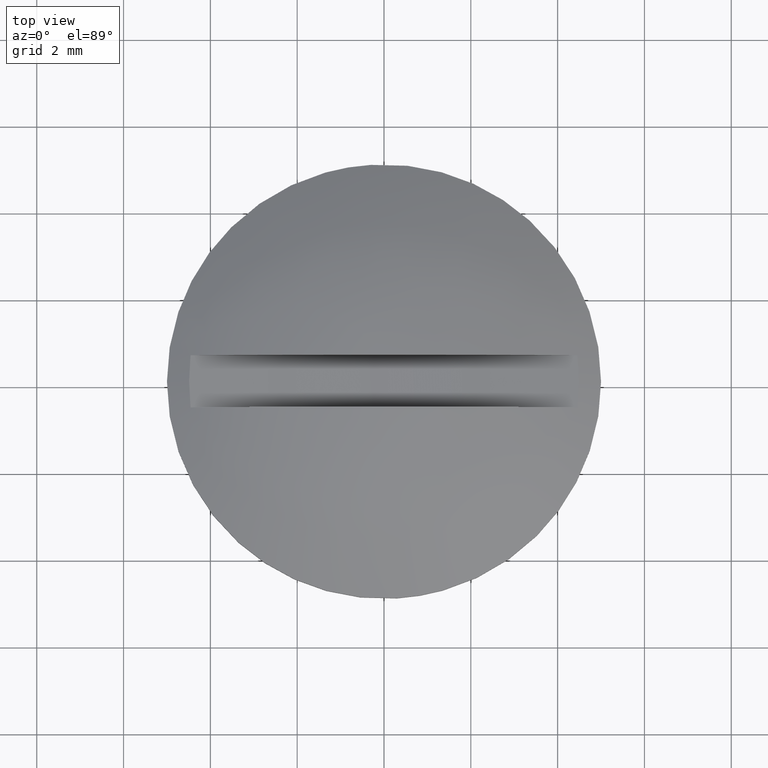
[diagram: clean part render]
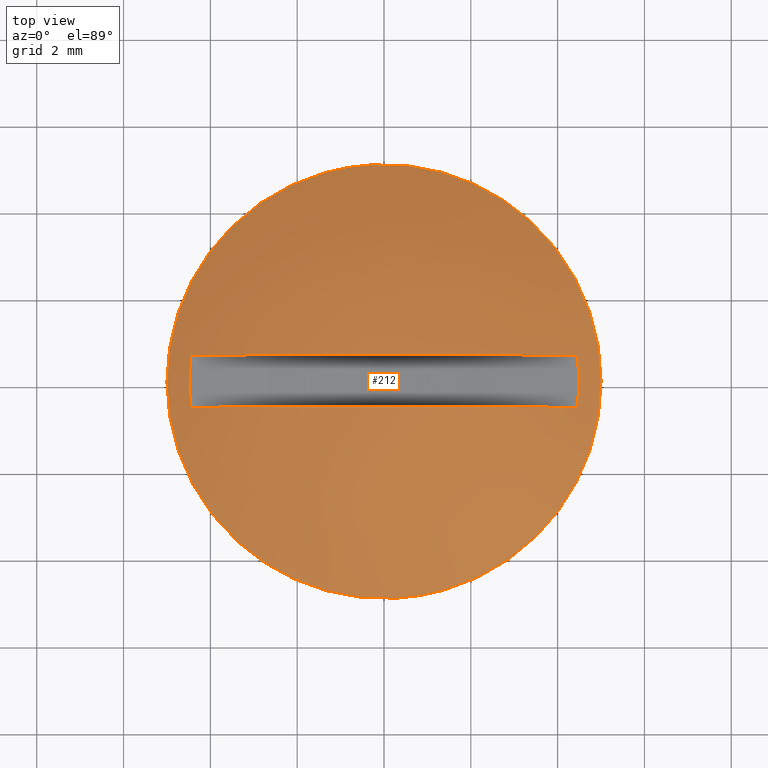
[diagram: same view with one face highlighted and labeled with its STEP entity id]
A machine part, top view. The second image highlights one B-rep face of the part: STEP entity #212.
In plain terms, the highlighted face is a freeform B-spline surface patch.
Its self-contained STEP definition (entity closure, byte-faithful):
#10=CARTESIAN_POINT('',(-4.457304998512805,-0.600006000000117,0.762320790087874));
#11=VERTEX_POINT('',#10);
#12=CARTESIAN_POINT('',(4.457304998512805,-0.600006000000117,0.762320790087874));
#13=VERTEX_POINT('',#12);
#27=CARTESIAN_POINT('',(4.457304998512805,-0.600006000000117,0.762320790087874));
#28=CARTESIAN_POINT('',(1.734723E-015,-0.600006000000121,2.915355173900649));
#29=CARTESIAN_POINT('',(-4.457304998512809,-0.600006000000121,0.762320790087893));
#37=(BOUNDED_CURVE()B_SPLINE_CURVE(2,(#27,#28,#29),.UNSPECIFIED.,.F.,.U.)CURVE()GEOMETRIC_REPRESENTATION_ITEM()QUASI_UNIFORM_CURVE()RATIONAL_B_SPLINE_CURVE((1.0,0.900454173822371,1.0))REPRESENTATION_ITEM(''));
#38=EDGE_CURVE('',#13,#11,#37,.T.);
#48=CARTESIAN_POINT('',(4.457304998512805,0.600006000000093,0.762320790087874));
#49=VERTEX_POINT('',#48);
#50=CARTESIAN_POINT('',(-4.457304998512805,0.600006000000093,0.762320790087874));
#51=VERTEX_POINT('',#50);
#52=CARTESIAN_POINT('',(4.457304998512805,0.600006000000093,0.762320790087874));
#53=CARTESIAN_POINT('',(1.734723E-015,0.600006000000092,2.915355173900649));
#54=CARTESIAN_POINT('',(-4.457304998512809,0.600006000000092,0.762320790087893));
#62=(BOUNDED_CURVE()B_SPLINE_CURVE(2,(#52,#53,#54),.UNSPECIFIED.,.F.,.U.)CURVE()GEOMETRIC_REPRESENTATION_ITEM()QUASI_UNIFORM_CURVE()RATIONAL_B_SPLINE_CURVE((1.0,0.900454173822371,1.0))REPRESENTATION_ITEM(''));
#63=EDGE_CURVE('',#49,#51,#62,.T.);
#96=CARTESIAN_POINT('',(-4.457304998512805,-0.600006000000117,0.762320790087874));
#97=CARTESIAN_POINT('',(-4.478937905404131,-0.400004000000082,0.764875914463260));
#98=CARTESIAN_POINT('',(-4.500333012067557,-1.203464E-014,0.767431038838625));
#99=CARTESIAN_POINT('',(-4.478937905404140,0.400004000000058,0.764875914463257));
#100=CARTESIAN_POINT('',(-4.457304998512814,0.600006000000093,0.762320790087889));
#101=B_SPLINE_CURVE_WITH_KNOTS('',3,(#96,#97,#98,#99,#100),.UNSPECIFIED.,.F.,.U.,(4,1,4),(0.0,0.500000000000000,1.0),.UNSPECIFIED.);
#102=EDGE_CURVE('',#11,#51,#101,.T.);
#105=CARTESIAN_POINT('',(4.457304998512805,0.600006000000093,0.762320790087874));
#106=CARTESIAN_POINT('',(4.478937905404133,0.400004000000058,0.764875914463260));
#107=CARTESIAN_POINT('',(4.500333012067553,-1.170938E-014,0.767431038838624));
#108=CARTESIAN_POINT('',(4.478937905404139,-0.400004000000082,0.764875914463256));
#109=CARTESIAN_POINT('',(4.457304998512812,-0.600006000000117,0.762320790087888));
#110=B_SPLINE_CURVE_WITH_KNOTS('',3,(#105,#106,#107,#108,#109),.UNSPECIFIED.,.F.,.U.,(4,1,4),(0.0,0.500000000000000,1.0),.UNSPECIFIED.);
#111=EDGE_CURVE('',#49,#13,#110,.T.);
#116=CARTESIAN_POINT('',(-5.045956700923784,-5.045843775283821,-1.085960173764777));
#117=CARTESIAN_POINT('',(-2.713712593191076,-5.427303723694530,0.247967023704561));
#118=CARTESIAN_POINT('',(2.713712482758695,-5.427303723694530,0.247967023704561));
#119=CARTESIAN_POINT('',(5.045956524447530,-5.045843804148130,-1.085960072829173));
#120=CARTESIAN_POINT('',(-5.427406821772628,-2.713642679747997,0.247902805943336));
#121=CARTESIAN_POINT('',(-2.935633126025279,-2.935567428226210,1.799999999999994));
#122=CARTESIAN_POINT('',(2.935633006562018,-2.935567428226210,1.799999999999994));
#123=CARTESIAN_POINT('',(5.427406634302624,-2.713642696444631,0.247902922716243));
#124=CARTESIAN_POINT('',(-5.427406821772629,2.713642627747518,0.247902805943336));
#125=CARTESIAN_POINT('',(-2.935633126025279,2.935567371973071,1.799999999999994));
#126=CARTESIAN_POINT('',(2.935633006562018,2.935567371973071,1.799999999999994));
#127=CARTESIAN_POINT('',(5.427406634302624,2.713642644444149,0.247902922716243));
#128=CARTESIAN_POINT('',(-5.045956714515476,5.045843692183666,-1.085960126237046));
#129=CARTESIAN_POINT('',(-2.713712601053278,5.427303635417270,0.247967078690002));
#130=CARTESIAN_POINT('',(2.713712490620897,5.427303635417270,0.247967078690002));
#131=CARTESIAN_POINT('',(5.045956538039226,5.045843721047977,-1.085960025301443));
#139=(BOUNDED_SURFACE()B_SPLINE_SURFACE(2,2,((#116,#120,#124,#128),(#117,#121,#125,#129),(#118,#122,#126,#130),(#119,#123,#127,#131)),.UNSPECIFIED.,.F.,.F.,.U.)B_SPLINE_SURFACE_WITH_KNOTS((3,1,3),(3,1,3),(1.197354909712076,6.733726077672158,12.270097020334010),(1.197478810548782,6.733726077672160,12.269973238706591),.UNSPECIFIED.)GEOMETRIC_REPRESENTATION_ITEM()RATIONAL_B_SPLINE_SURFACE(((1.163558587606525,1.081781123997807,1.081781123997807,1.163558584472386),(1.081777463608718,1.0,1.0,1.081777460474579),(1.081777463608718,1.0,1.0,1.081777460474579),(1.163558580950490,1.081781117341771,1.081781117341771,1.163558577816350)))REPRESENTATION_ITEM('')SURFACE());
#140=CARTESIAN_POINT('',(0.305240933789139,-4.990674099992546,0.499999999999986));
#141=VERTEX_POINT('',#140);
#142=CARTESIAN_POINT('',(-5.0,0.0,0.499999999999986));
#143=VERTEX_POINT('',#142);
#144=CARTESIAN_POINT('',(0.305240933789139,-4.990674099992546,0.499999999999986));
#145=CARTESIAN_POINT('',(0.152762932077496,-4.999999999999693,0.499999999999986));
#146=CARTESIAN_POINT('',(-1.729080E-014,-4.999999999999698,0.499999999999986));
#147=CARTESIAN_POINT('',(-5.000000000000009,-4.999999999999853,0.499999999999986));
#148=CARTESIAN_POINT('',(-5.0,0.0,0.499999999999986));
#156=(BOUNDED_CURVE()B_SPLINE_CURVE(2,(#144,#145,#146,#147,#148),.UNSPECIFIED.,.F.,.U.)B_SPLINE_CURVE_WITH_KNOTS((3,2,3),(0.739333023226263,0.750000000000000,1.0),.UNSPECIFIED.)CURVE()GEOMETRIC_REPRESENTATION_ITEM()RATIONAL_B_SPLINE_CURVE((0.976072172374189,0.987502859350927,1.0,0.707106781186548,1.0))REPRESENTATION_ITEM(''));
#157=EDGE_CURVE('',#141,#143,#156,.T.);
#158=ORIENTED_EDGE('',*,*,#157,.F.);
#159=CARTESIAN_POINT('',(5.0,0.0,0.499999999999986));
#160=VERTEX_POINT('',#159);
#161=CARTESIAN_POINT('',(5.0,0.0,0.499999999999986));
#162=CARTESIAN_POINT('',(4.999999999999992,-4.703532000033230,0.499999999999986));
#163=CARTESIAN_POINT('',(0.305240933789139,-4.990674099992546,0.499999999999986));
#171=(BOUNDED_CURVE()B_SPLINE_CURVE(2,(#161,#162,#163),.UNSPECIFIED.,.F.,.U.)B_SPLINE_CURVE_WITH_KNOTS((3,3),(0.500000000000000,0.739333023226263),.UNSPECIFIED.)CURVE()GEOMETRIC_REPRESENTATION_ITEM()RATIONAL_B_SPLINE_CURVE((1.0,0.719603921835620,0.976072172374189))REPRESENTATION_ITEM(''));
#172=EDGE_CURVE('',#160,#141,#171,.T.);
#173=ORIENTED_EDGE('',*,*,#172,.F.);
#174=CARTESIAN_POINT('',(-0.305240933789139,4.990674099992546,0.499999999999986));
#175=VERTEX_POINT('',#174);
#176=CARTESIAN_POINT('',(-0.305240933789139,4.990674099992546,0.499999999999986));
#177=CARTESIAN_POINT('',(-0.152762932077495,4.999999999999692,0.499999999999986));
#178=CARTESIAN_POINT('',(1.885290E-014,4.999999999999697,0.499999999999986));
#179=CARTESIAN_POINT('',(5.000000000000009,4.999999999999853,0.499999999999986));
#180=CARTESIAN_POINT('',(5.0,0.0,0.499999999999986));
#188=(BOUNDED_CURVE()B_SPLINE_CURVE(2,(#176,#177,#178,#179,#180),.UNSPECIFIED.,.F.,.U.)B_SPLINE_CURVE_WITH_KNOTS((3,2,3),(0.239333023226263,0.250000000000000,0.500000000000000),.UNSPECIFIED.)CURVE()GEOMETRIC_REPRESENTATION_ITEM()RATIONAL_B_SPLINE_CURVE((0.976072172374189,0.987502859350927,1.0,0.707106781186548,1.0))REPRESENTATION_ITEM(''));
#189=EDGE_CURVE('',#175,#160,#188,.T.);
#190=ORIENTED_EDGE('',*,*,#189,.F.);
#191=CARTESIAN_POINT('',(-5.0,0.0,0.499999999999986));
#192=CARTESIAN_POINT('',(-4.999999999999991,4.703532000033228,0.499999999999986));
#193=CARTESIAN_POINT('',(-0.305240933789139,4.990674099992546,0.499999999999986));
#201=(BOUNDED_CURVE()B_SPLINE_CURVE(2,(#191,#192,#193),.UNSPECIFIED.,.F.,.U.)B_SPLINE_CURVE_WITH_KNOTS((3,3),(0.0,0.239333023226263),.UNSPECIFIED.)CURVE()GEOMETRIC_REPRESENTATION_ITEM()RATIONAL_B_SPLINE_CURVE((1.0,0.719603921835620,0.976072172374189))REPRESENTATION_ITEM(''));
#202=EDGE_CURVE('',#143,#175,#201,.T.);
#203=ORIENTED_EDGE('',*,*,#202,.F.);
#204=EDGE_LOOP('',(#158,#173,#190,#203));
#205=FACE_OUTER_BOUND('',#204,.T.);
#206=ORIENTED_EDGE('',*,*,#63,.F.);
#207=ORIENTED_EDGE('',*,*,#111,.T.);
#208=ORIENTED_EDGE('',*,*,#38,.T.);
#209=ORIENTED_EDGE('',*,*,#102,.T.);
#210=EDGE_LOOP('',(#206,#207,#208,#209));
#211=FACE_BOUND('',#210,.T.);
#212=ADVANCED_FACE('',(#205,#211),#139,.T.);